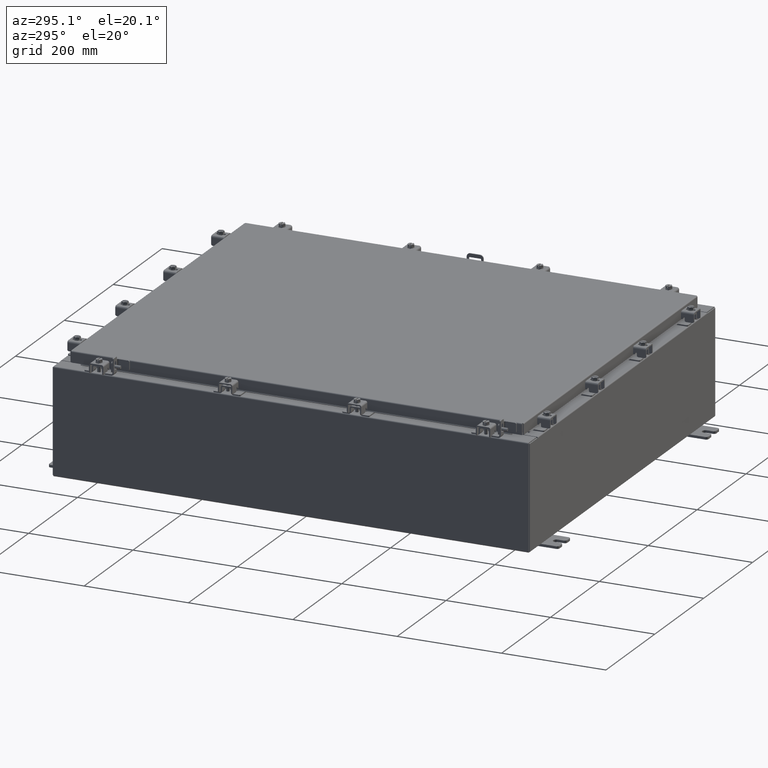
[diagram: clean part render]
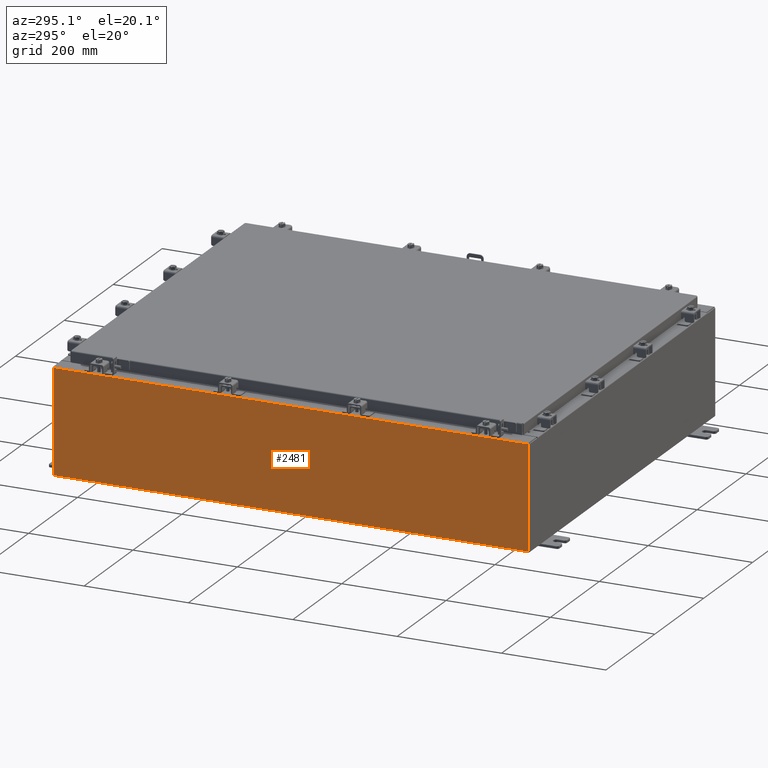
[diagram: same view with one face highlighted and labeled with its STEP entity id]
A machine part, auxiliary view. The second image highlights one B-rep face of the part: STEP entity #2481.
In plain terms, the highlighted planar face has unit normal (1, 0, 0).
Its self-contained STEP definition (entity closure, byte-faithful):
#190 = ORIENTED_EDGE ( 'NONE', *, *, #17674, .T. ) ;
#1255 = EDGE_CURVE ( 'NONE', #20506, #6877, #7001, .T. ) ;
#1320 = VECTOR ( 'NONE', #13285, 39.37007874015748100 ) ;
#1643 = LINE ( 'NONE', #3842, #5714 ) ;
#2481 = ADVANCED_FACE ( 'NONE', ( #11174 ), #19016, .F. ) ;
#3666 = VECTOR ( 'NONE', #7998, 39.37007874015748100 ) ;
#3842 = CARTESIAN_POINT ( 'NONE',  ( -15.00000000000000400, 17.92530000000000000, -5.403936812467120800E-014 ) ) ;
#4860 = CARTESIAN_POINT ( 'NONE',  ( -15.00000000000000400, -17.92530000000000000, -5.403936812467120800E-014 ) ) ;
#5714 = VECTOR ( 'NONE', #16041, 39.37007874015748100 ) ;
#6675 = VERTEX_POINT ( 'NONE', #21730 ) ;
#6877 = VERTEX_POINT ( 'NONE', #7182 ) ;
#7001 = LINE ( 'NONE', #4860, #11074 ) ;
#7182 = CARTESIAN_POINT ( 'NONE',  ( -15.00000000000003200, -17.92530000000000000, 7.837599999999999200 ) ) ;
#7998 = DIRECTION ( 'NONE',  ( 0.0000000000000000000, 1.000000000000000000, 0.0000000000000000000 ) ) ;
#8295 = AXIS2_PLACEMENT_3D ( 'NONE', #13805, #13763, #18944 ) ;
#8348 = CARTESIAN_POINT ( 'NONE',  ( -15.00000000000000400, -17.92530000000000000, 0.01299999999999985200 ) ) ;
#10737 = DIRECTION ( 'NONE',  ( -3.584876173029202900E-015, 0.0000000000000000000, 1.000000000000000000 ) ) ;
#10839 = EDGE_LOOP ( 'NONE', ( #14451, #190, #16233, #15349 ) ) ;
#11074 = VECTOR ( 'NONE', #10737, 39.37007874015748100 ) ;
#11174 = FACE_OUTER_BOUND ( 'NONE', #10839, .T. ) ;
#12402 = LINE ( 'NONE', #20143, #3666 ) ;
#13285 = DIRECTION ( 'NONE',  ( -0.0000000000000000000, 1.000000000000000000, -0.0000000000000000000 ) ) ;
#13763 = DIRECTION ( 'NONE',  ( 1.000000000000000000, 0.0000000000000000000, 3.584876173029202900E-015 ) ) ;
#13805 = CARTESIAN_POINT ( 'NONE',  ( -15.00000000000000400, 0.0000000000000000000, -5.403936812467120800E-014 ) ) ;
#14451 = ORIENTED_EDGE ( 'NONE', *, *, #22271, .T. ) ;
#15349 = ORIENTED_EDGE ( 'NONE', *, *, #1255, .T. ) ;
#16041 = DIRECTION ( 'NONE',  ( 3.584876173029202900E-015, 0.0000000000000000000, -1.000000000000000000 ) ) ;
#16083 = VERTEX_POINT ( 'NONE', #17779 ) ;
#16233 = ORIENTED_EDGE ( 'NONE', *, *, #19688, .F. ) ;
#17674 = EDGE_CURVE ( 'NONE', #16083, #6675, #1643, .T. ) ;
#17779 = CARTESIAN_POINT ( 'NONE',  ( -15.00000000000003200, 17.92530000000000000, 7.837599999999999200 ) ) ;
#18944 = DIRECTION ( 'NONE',  ( 3.584876173029202900E-015, 0.0000000000000000000, -1.000000000000000000 ) ) ;
#19016 = PLANE ( 'NONE',  #8295 ) ;
#19688 = EDGE_CURVE ( 'NONE', #20506, #6675, #19825, .T. ) ;
#19825 = LINE ( 'NONE', #20137, #1320 ) ;
#20137 = CARTESIAN_POINT ( 'NONE',  ( -15.00000000000000400, 17.92530000000000000, 0.01299999999999985200 ) ) ;
#20143 = CARTESIAN_POINT ( 'NONE',  ( -15.00000000000003200, -17.92530000000000000, 7.837599999999999200 ) ) ;
#20506 = VERTEX_POINT ( 'NONE', #8348 ) ;
#21730 = CARTESIAN_POINT ( 'NONE',  ( -15.00000000000000400, 17.92530000000000000, 0.01299999999999983500 ) ) ;
#22271 = EDGE_CURVE ( 'NONE', #6877, #16083, #12402, .T. ) ;